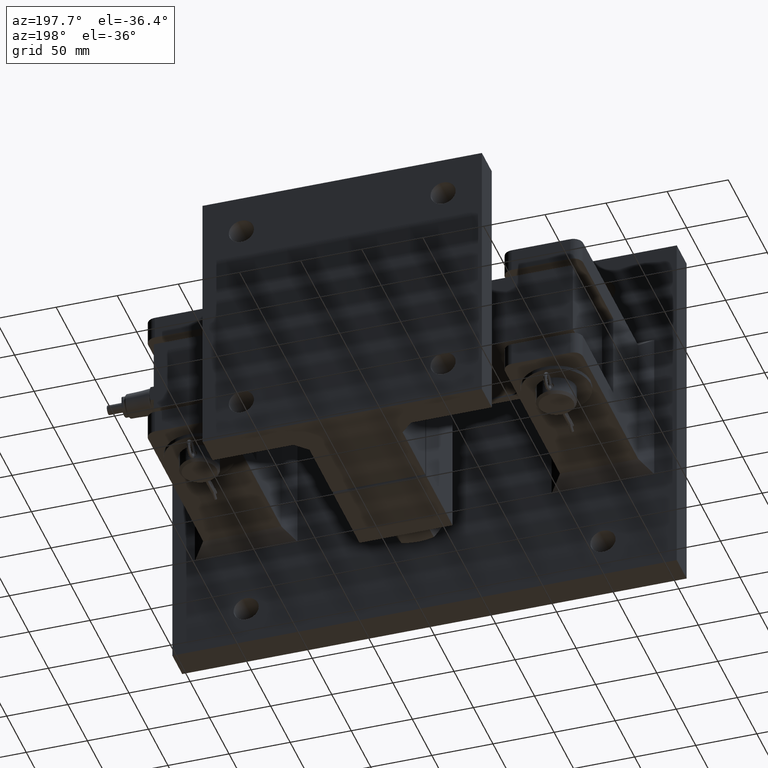
[diagram: clean part render]
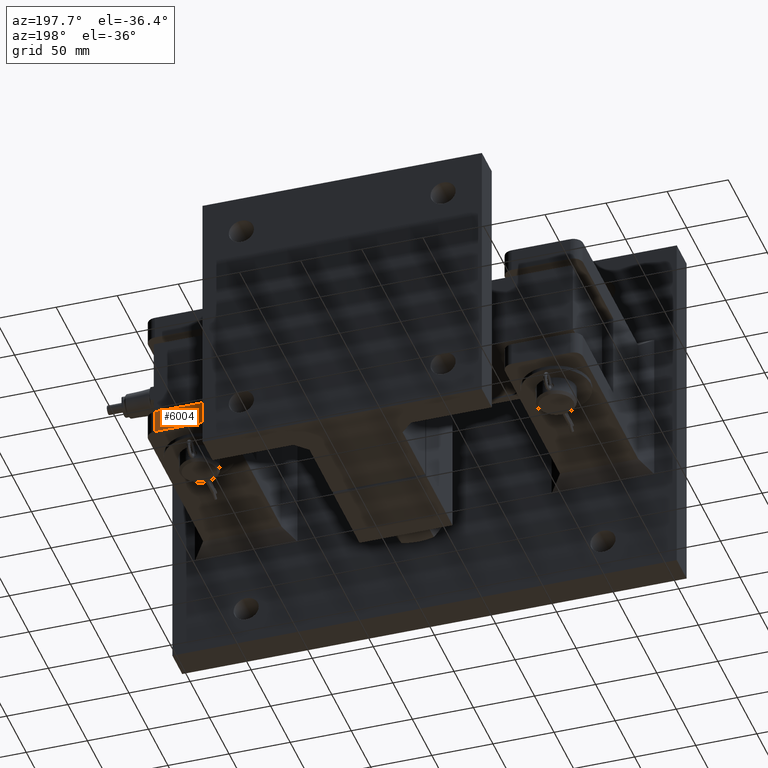
[diagram: same view with one face highlighted and labeled with its STEP entity id]
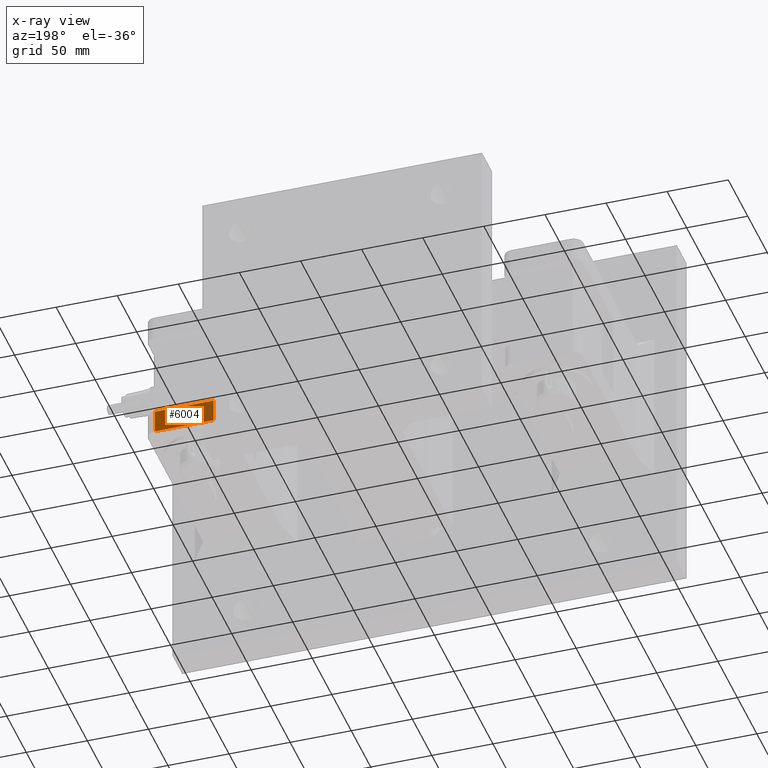
[diagram: x-ray of the same camera — body ghosted, the highlighted face saturated]
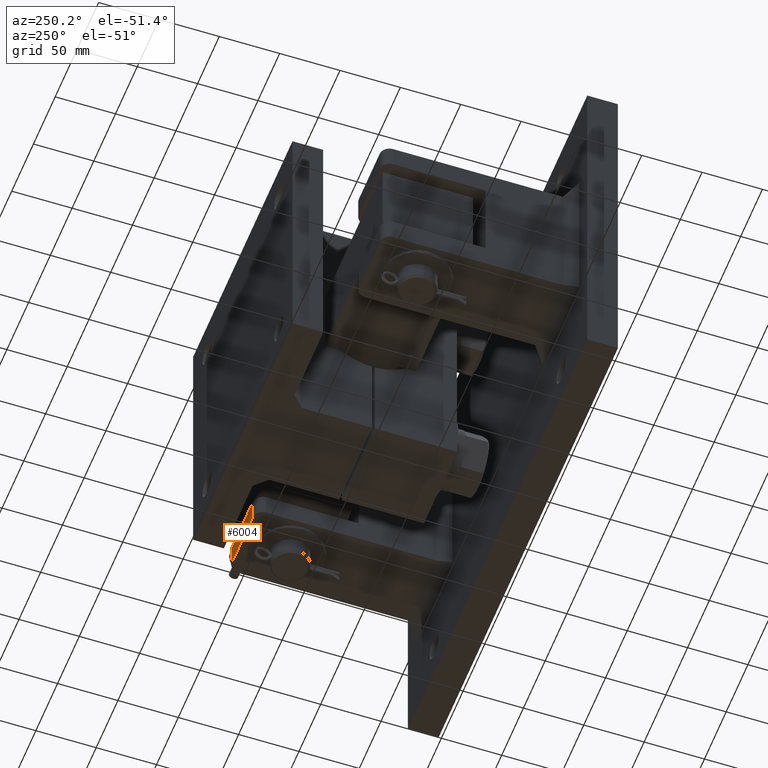
[diagram: same view with one face highlighted and labeled with its STEP entity id]
A machine part, auxiliary view. The second image highlights one B-rep face of the part: STEP entity #6004.
The next image is the same camera in x-ray: the body ghosted, the highlighted face saturated — about 19% of this face is hidden behind the body in this view.
A second angle (auxiliary view) of the same face is appended — the face is thin or edge-on in the first view.
In plain terms, the highlighted planar face has unit normal (0, -1, 0).
Its self-contained STEP definition (entity closure, byte-faithful):
#94 = LINE ( 'NONE', #11056, #4968 ) ;
#104 = EDGE_CURVE ( 'NONE', #1777, #2229, #5037, .T. ) ;
#259 = EDGE_CURVE ( 'NONE', #4930, #2229, #8684, .T. ) ;
#444 = DIRECTION ( 'NONE',  ( 0.000000000000000000, -1.000000000000000000, 0.000000000000000000 ) ) ;
#475 = EDGE_LOOP ( 'NONE', ( #6127, #1331, #5357, #8670 ) ) ;
#1010 = VERTEX_POINT ( 'NONE', #6577 ) ;
#1207 = AXIS2_PLACEMENT_3D ( 'NONE', #9558, #444, #7285 ) ;
#1331 = ORIENTED_EDGE ( 'NONE', *, *, #6227, .T. ) ;
#1777 = VERTEX_POINT ( 'NONE', #4519 ) ;
#2229 = VERTEX_POINT ( 'NONE', #3931 ) ;
#2301 = DIRECTION ( 'NONE',  ( -0.000000000000000000, -0.000000000000000000, -1.000000000000000000 ) ) ;
#2332 = DIRECTION ( 'NONE',  ( -0.000000000000000000, -0.000000000000000000, -1.000000000000000000 ) ) ;
#2392 = CARTESIAN_POINT ( 'NONE',  ( 170.0000000000000000, 184.2999999999999829, 55.00000000000000000 ) ) ;
#2535 = CARTESIAN_POINT ( 'NONE',  ( 170.0000000000000000, 184.2999999999999829, -55.00000000000000000 ) ) ;
#3585 = DIRECTION ( 'NONE',  ( -1.000000000000000000, 0.000000000000000000, 0.000000000000000000 ) ) ;
#3931 = CARTESIAN_POINT ( 'NONE',  ( 121.9999999999999716, 184.2999999999999829, -55.00000000000000000 ) ) ;
#4366 = EDGE_CURVE ( 'NONE', #1010, #4930, #8287, .T. ) ;
#4519 = CARTESIAN_POINT ( 'NONE',  ( 121.9999999999999716, 184.2999999999999829, -36.00000000000001421 ) ) ;
#4930 = VERTEX_POINT ( 'NONE', #2535 ) ;
#4968 = VECTOR ( 'NONE', #6042, 1000.000000000000000 ) ;
#5037 = LINE ( 'NONE', #10166, #10795 ) ;
#5208 = CARTESIAN_POINT ( 'NONE',  ( 0.000000000000000000, 184.2999999999999829, -55.00000000000000000 ) ) ;
#5230 = PLANE ( 'NONE',  #1207 ) ;
#5357 = ORIENTED_EDGE ( 'NONE', *, *, #4366, .T. ) ;
#5749 = VECTOR ( 'NONE', #3585, 1000.000000000000000 ) ;
#6004 = ADVANCED_FACE ( 'NONE', ( #8646 ), #5230, .F. ) ;
#6042 = DIRECTION ( 'NONE',  ( 1.000000000000000000, 0.000000000000000000, 0.000000000000000000 ) ) ;
#6127 = ORIENTED_EDGE ( 'NONE', *, *, #104, .F. ) ;
#6227 = EDGE_CURVE ( 'NONE', #1777, #1010, #94, .T. ) ;
#6577 = CARTESIAN_POINT ( 'NONE',  ( 170.0000000000000000, 184.2999999999999829, -36.00000000000001421 ) ) ;
#7219 = VECTOR ( 'NONE', #2332, 1000.000000000000000 ) ;
#7285 = DIRECTION ( 'NONE',  ( 0.000000000000000000, -0.000000000000000000, -1.000000000000000000 ) ) ;
#8287 = LINE ( 'NONE', #2392, #7219 ) ;
#8646 = FACE_OUTER_BOUND ( 'NONE', #475, .T. ) ;
#8670 = ORIENTED_EDGE ( 'NONE', *, *, #259, .T. ) ;
#8684 = LINE ( 'NONE', #5208, #5749 ) ;
#9558 = CARTESIAN_POINT ( 'NONE',  ( 0.000000000000000000, 184.2999999999999829, 55.00000000000000000 ) ) ;
#10166 = CARTESIAN_POINT ( 'NONE',  ( 121.9999999999999716, 184.2999999999999829, 55.00000000000000000 ) ) ;
#10795 = VECTOR ( 'NONE', #2301, 1000.000000000000000 ) ;
#11056 = CARTESIAN_POINT ( 'NONE',  ( 0.000000000000000000, 184.2999999999999829, -36.00000000000001421 ) ) ;